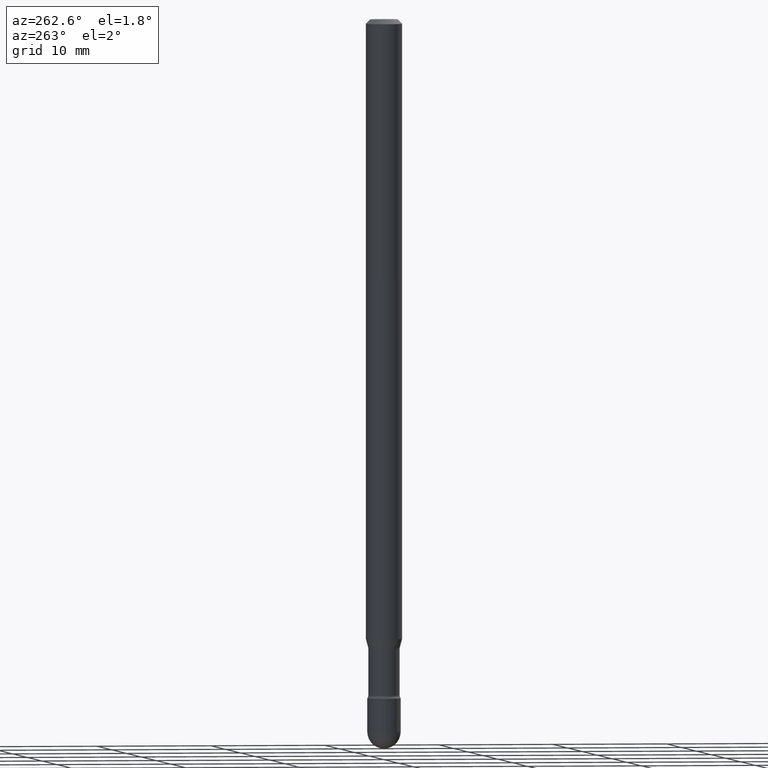
[diagram: clean part render]
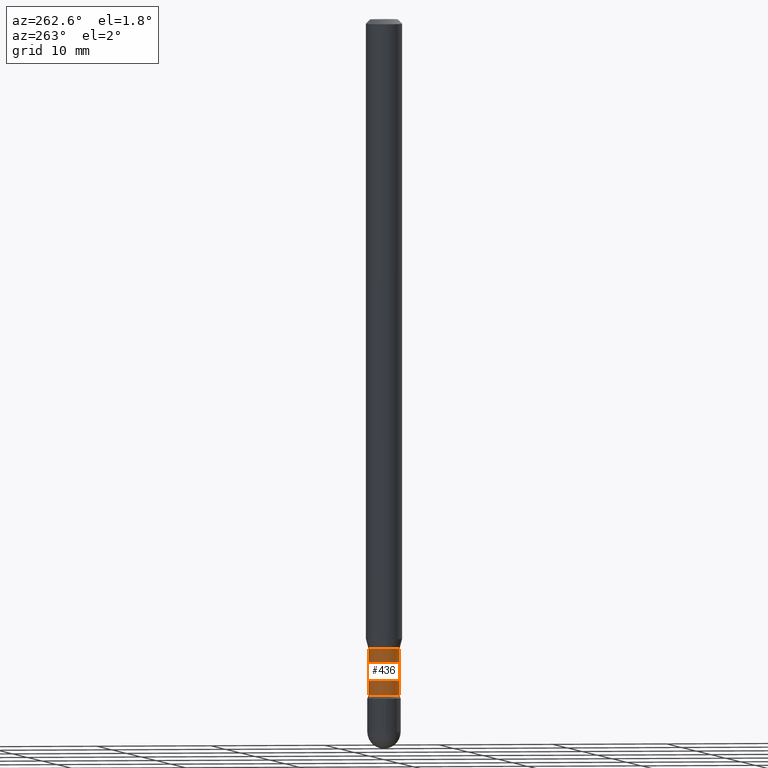
[diagram: same view with one face highlighted and labeled with its STEP entity id]
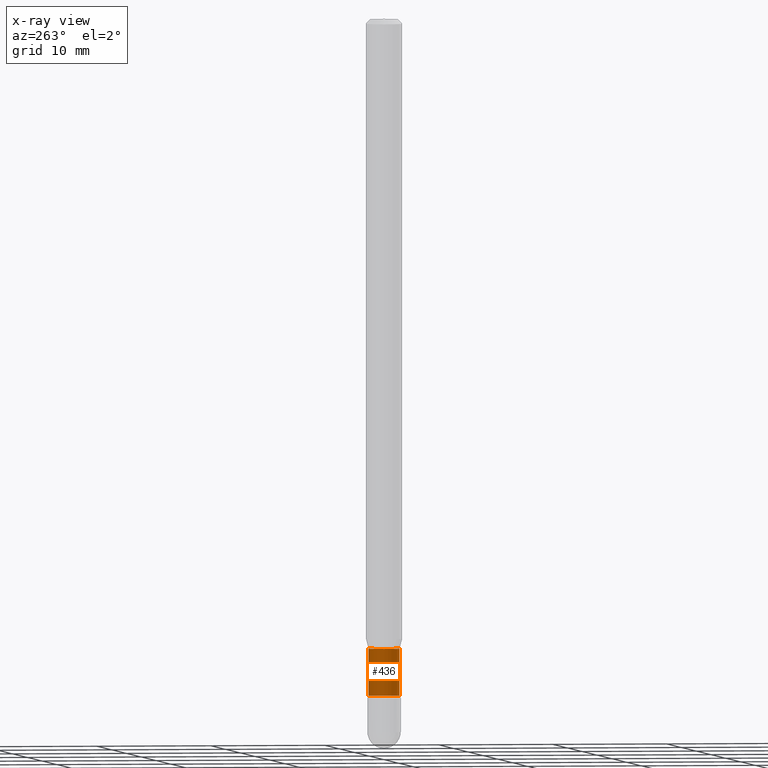
[diagram: x-ray of the same camera — body ghosted, the highlighted face saturated]
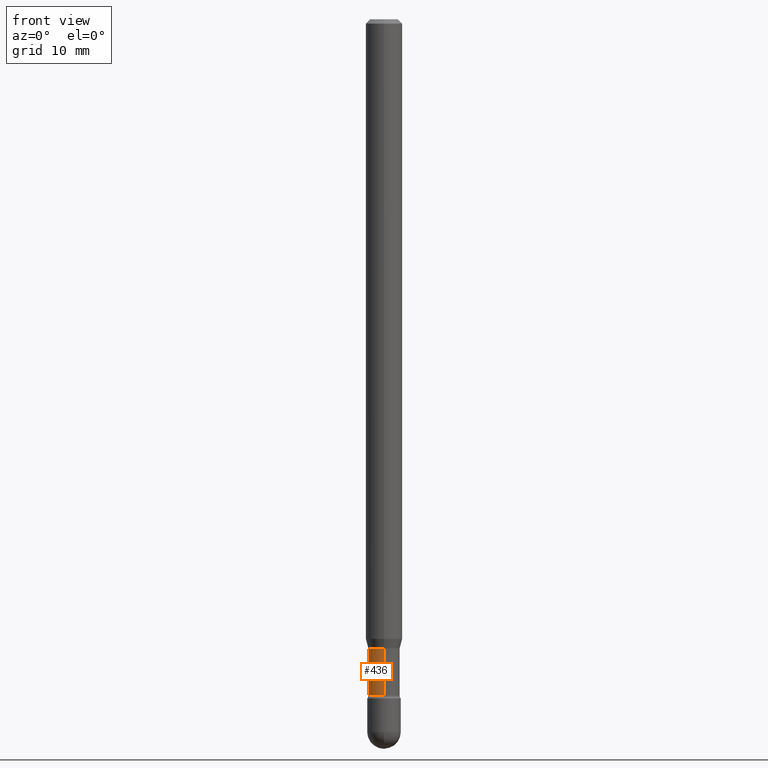
[diagram: same view with one face highlighted and labeled with its STEP entity id]
A machine part, auxiliary view. The second image highlights one B-rep face of the part: STEP entity #436.
The next image is the same camera in x-ray: the body ghosted, the highlighted face saturated — about 0% of this face is hidden behind the body in this view.
A second angle (front view) of the same face is appended — the face is thin or edge-on in the first view.
In plain terms, the highlighted cylindrical surface (edge-blend (fillet) strip) has radius 1.3729 mm, axis along (-0, 0, 1).
Its self-contained STEP definition (entity closure, byte-faithful):
#2 = VECTOR ( 'NONE', #91, 39.37007874015748143 ) ;
#9 = ORIENTED_EDGE ( 'NONE', *, *, #85, .T. ) ;
#18 = VERTEX_POINT ( 'NONE', #380 ) ;
#34 = ORIENTED_EDGE ( 'NONE', *, *, #408, .F. ) ;
#62 = FACE_OUTER_BOUND ( 'NONE', #197, .T. ) ;
#85 = EDGE_CURVE ( 'NONE', #331, #18, #183, .T. ) ;
#91 = DIRECTION ( 'NONE',  ( -2.445502052278605935E-29, 3.491433728545047957E-15, 1.000000000000000000 ) ) ;
#103 = ORIENTED_EDGE ( 'NONE', *, *, #336, .F. ) ;
#117 = CYLINDRICAL_SURFACE ( 'NONE', #474, 0.05405000000000002858 ) ;
#122 = DIRECTION ( 'NONE',  ( -6.982962677686266711E-15, -1.000000000000000000, 5.054297860618428788E-15 ) ) ;
#136 = CARTESIAN_POINT ( 'NONE',  ( -3.774291327289428766E-16, -0.05405000000000002858, 6.667853919191060763E-16 ) ) ;
#143 = ORIENTED_EDGE ( 'NONE', *, *, #218, .T. ) ;
#154 = DIRECTION ( 'NONE',  ( -2.445502052278605655E-29, 3.491433728545047957E-15, 1.000000000000000000 ) ) ;
#182 = CIRCLE ( 'NONE', #363, 0.05405000000000000082 ) ;
#183 = CIRCLE ( 'NONE', #457, 0.05405000000000004939 ) ;
#197 = EDGE_LOOP ( 'NONE', ( #103, #9, #143, #34 ) ) ;
#201 = DIRECTION ( 'NONE',  ( -6.982962677686265922E-15, -1.000000000000000000, 5.054297860618433521E-15 ) ) ;
#218 = EDGE_CURVE ( 'NONE', #18, #425, #525, .T. ) ;
#232 = LINE ( 'NONE', #534, #520 ) ;
#242 = DIRECTION ( 'NONE',  ( -6.982962677686265922E-15, -1.000000000000000000, 3.491433728545049140E-15 ) ) ;
#247 = CARTESIAN_POINT ( 'NONE',  ( 5.274886269455959517E-29, -7.530934524572436065E-15, -2.156974787463810994 ) ) ;
#285 = DIRECTION ( 'NONE',  ( -2.445502052278605655E-29, 3.491433728545047957E-15, 1.000000000000000000 ) ) ;
#331 = VERTEX_POINT ( 'NONE', #367 ) ;
#336 = EDGE_CURVE ( 'NONE', #331, #432, #232, .T. ) ;
#349 = CARTESIAN_POINT ( 'NONE',  ( -3.774291327288899243E-16, -0.05405000000000752952, -2.156974787463810994 ) ) ;
#363 = AXIS2_PLACEMENT_3D ( 'NONE', #247, #154, #201 ) ;
#367 = CARTESIAN_POINT ( 'NONE',  ( 3.963052108702526638E-16, 0.05404999999999195864, -2.317429341715430802 ) ) ;
#380 = CARTESIAN_POINT ( 'NONE',  ( -3.774291327288863745E-16, -0.05405000000000814708, -2.317429341715430358 ) ) ;
#408 = EDGE_CURVE ( 'NONE', #432, #425, #182, .T. ) ;
#416 = DIRECTION ( 'NONE',  ( -2.445502052278605935E-29, 3.491433728545047957E-15, 1.000000000000000000 ) ) ;
#425 = VERTEX_POINT ( 'NONE', #349 ) ;
#431 = CARTESIAN_POINT ( 'NONE',  ( -1.169113584055446105E-44, 1.669184350826100908E-30, 4.780733988912460139E-16 ) ) ;
#432 = VERTEX_POINT ( 'NONE', #458 ) ;
#434 = DIRECTION ( 'NONE',  ( -2.445502052278605655E-29, 3.491433728545047957E-15, 1.000000000000000000 ) ) ;
#436 = ADVANCED_FACE ( 'NONE', ( #62 ), #117, .T. ) ;
#457 = AXIS2_PLACEMENT_3D ( 'NONE', #468, #434, #122 ) ;
#458 = CARTESIAN_POINT ( 'NONE',  ( 3.840483486783909543E-16, 0.05404999999999247212, -2.156974787463811438 ) ) ;
#468 = CARTESIAN_POINT ( 'NONE',  ( 5.667278211175743242E-29, -8.091150967185200289E-15, -2.317429341715430802 ) ) ;
#474 = AXIS2_PLACEMENT_3D ( 'NONE', #431, #285, #242 ) ;
#520 = VECTOR ( 'NONE', #416, 39.37007874015748143 ) ;
#525 = LINE ( 'NONE', #136, #2 ) ;
#534 = CARTESIAN_POINT ( 'NONE',  ( 3.840483486783343042E-16, 0.05405000000000002858, 2.893614058633860995E-16 ) ) ;